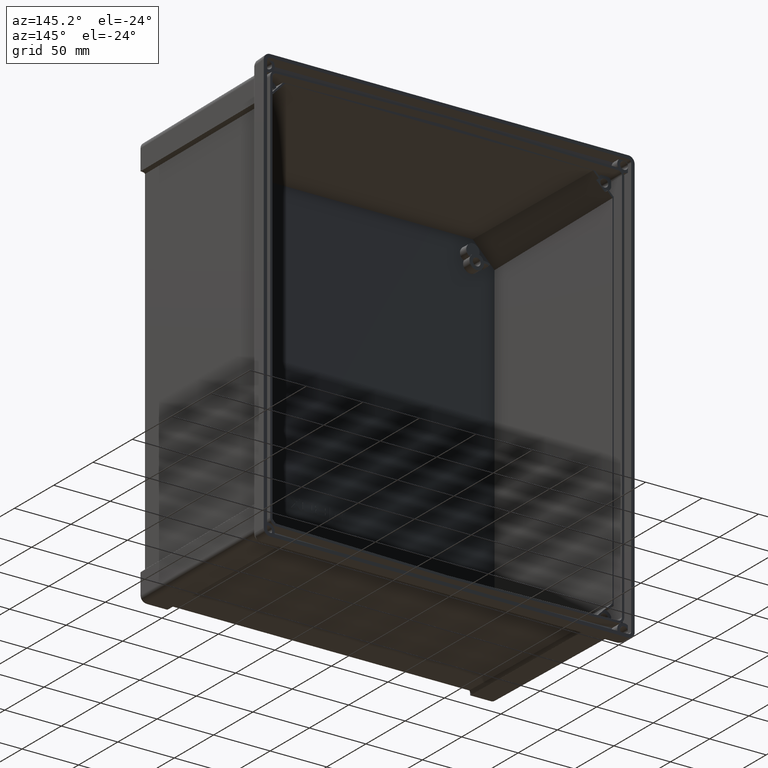
[diagram: clean part render]
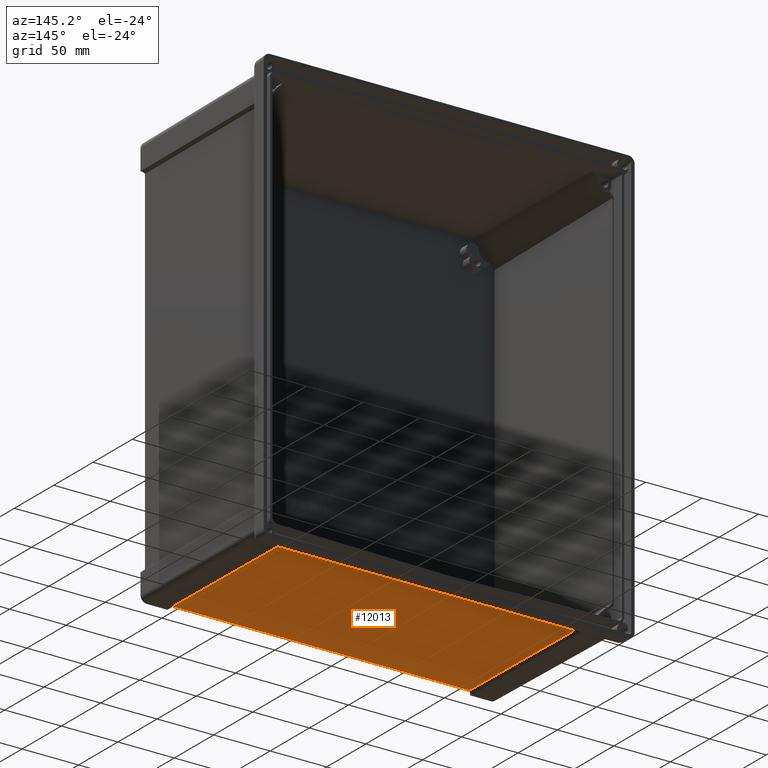
[diagram: same view with one face highlighted and labeled with its STEP entity id]
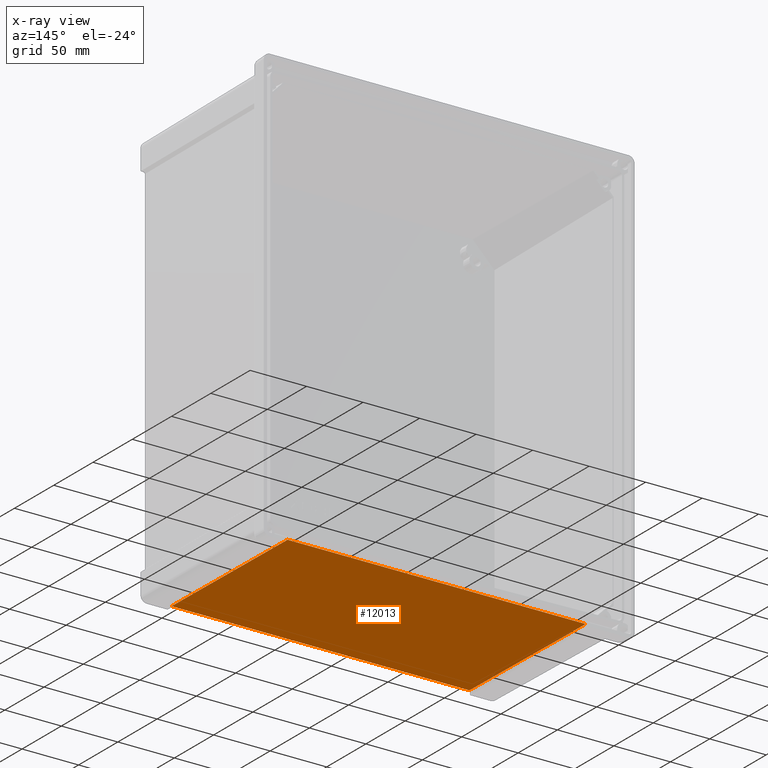
[diagram: x-ray of the same camera — body ghosted, the highlighted face saturated]
A machine part, auxiliary view. The second image highlights one B-rep face of the part: STEP entity #12013.
The next image is the same camera in x-ray: the body ghosted, the highlighted face saturated — about 0% of this face is hidden behind the body in this view.
In plain terms, the highlighted planar face has unit normal (0, -0.0087, -1).
Its self-contained STEP definition (entity closure, byte-faithful):
#50 = LINE ( 'NONE', #14342, #16317 ) ;
#632 = DIRECTION ( 'NONE',  ( 0.0000000000000000000, 0.9999619230641712000, -0.008726535498377261900 ) ) ;
#653 = DIRECTION ( 'NONE',  ( 1.000000000000000000, 0.0000000000000000000, 0.0000000000000000000 ) ) ;
#1339 = CARTESIAN_POINT ( 'NONE',  ( -131.8963034739871600, -16.00718998141753600, -181.9410166084483100 ) ) ;
#1546 = ORIENTED_EDGE ( 'NONE', *, *, #12547, .T. ) ;
#1852 = VECTOR ( 'NONE', #653, 1000.000000000000000 ) ;
#2074 = CARTESIAN_POINT ( 'NONE',  ( -157.0000000000000300, -164.0000000000000000, -180.6495029214327400 ) ) ;
#2739 = DIRECTION ( 'NONE',  ( 1.000000000000000000, -0.0000000000000000000, -0.0000000000000000000 ) ) ;
#2867 = ORIENTED_EDGE ( 'NONE', *, *, #11584, .F. ) ;
#3219 = CARTESIAN_POINT ( 'NONE',  ( -157.0000000000000300, -16.00718998141753200, -181.9410166084483100 ) ) ;
#4196 = VECTOR ( 'NONE', #11825, 999.9999999999998900 ) ;
#4436 = PLANE ( 'NONE',  #6589 ) ;
#4532 = VERTEX_POINT ( 'NONE', #6558 ) ;
#6249 = VERTEX_POINT ( 'NONE', #12831 ) ;
#6558 = CARTESIAN_POINT ( 'NONE',  ( 131.8963034739882400, -16.00718998141753600, -181.9410166084483100 ) ) ;
#6589 = AXIS2_PLACEMENT_3D ( 'NONE', #3219, #8291, #632 ) ;
#6591 = LINE ( 'NONE', #2074, #1852 ) ;
#7978 = LINE ( 'NONE', #10366, #4196 ) ;
#8158 = EDGE_CURVE ( 'NONE', #4532, #6249, #8925, .T. ) ;
#8291 = DIRECTION ( 'NONE',  ( 0.0000000000000000000, -0.008726535498377263600, -0.9999619230641713100 ) ) ;
#8711 = ORIENTED_EDGE ( 'NONE', *, *, #8158, .T. ) ;
#8925 = LINE ( 'NONE', #13715, #15550 ) ;
#9783 = DIRECTION ( 'NONE',  ( -0.0009171954542834618600, -0.9999615024563482900, 0.008726531827788399500 ) ) ;
#10366 = CARTESIAN_POINT ( 'NONE',  ( -590.5263347046459300, 499999.9631895044000, -4545.514283379847300 ) ) ;
#11013 = CARTESIAN_POINT ( 'NONE',  ( -131.7605599155768600, -164.0000000000000000, -180.6495029214327400 ) ) ;
#11076 = ORIENTED_EDGE ( 'NONE', *, *, #15898, .T. ) ;
#11383 = VERTEX_POINT ( 'NONE', #1339 ) ;
#11584 = EDGE_CURVE ( 'NONE', #13567, #6249, #6591, .T. ) ;
#11825 = DIRECTION ( 'NONE',  ( -0.0009171954542830893300, 0.9999615024563482900, -0.008726531827788401200 ) ) ;
#11826 = FACE_OUTER_BOUND ( 'NONE', #16093, .T. ) ;
#12013 = ADVANCED_FACE ( 'NONE', ( #11826 ), #4436, .T. ) ;
#12547 = EDGE_CURVE ( 'NONE', #13567, #11383, #7978, .T. ) ;
#12831 = CARTESIAN_POINT ( 'NONE',  ( 131.7605599155778000, -164.0000000000000000, -180.6495029214327400 ) ) ;
#13567 = VERTEX_POINT ( 'NONE', #11013 ) ;
#13715 = CARTESIAN_POINT ( 'NONE',  ( 590.5263347048330600, 499999.9631895044000, -4545.514283379847300 ) ) ;
#14342 = CARTESIAN_POINT ( 'NONE',  ( -157.0000000000000300, -16.00718998141753200, -181.9410166084483100 ) ) ;
#15550 = VECTOR ( 'NONE', #9783, 999.9999999999998900 ) ;
#15898 = EDGE_CURVE ( 'NONE', #11383, #4532, #50, .T. ) ;
#16093 = EDGE_LOOP ( 'NONE', ( #1546, #11076, #8711, #2867 ) ) ;
#16317 = VECTOR ( 'NONE', #2739, 1000.000000000000000 ) ;